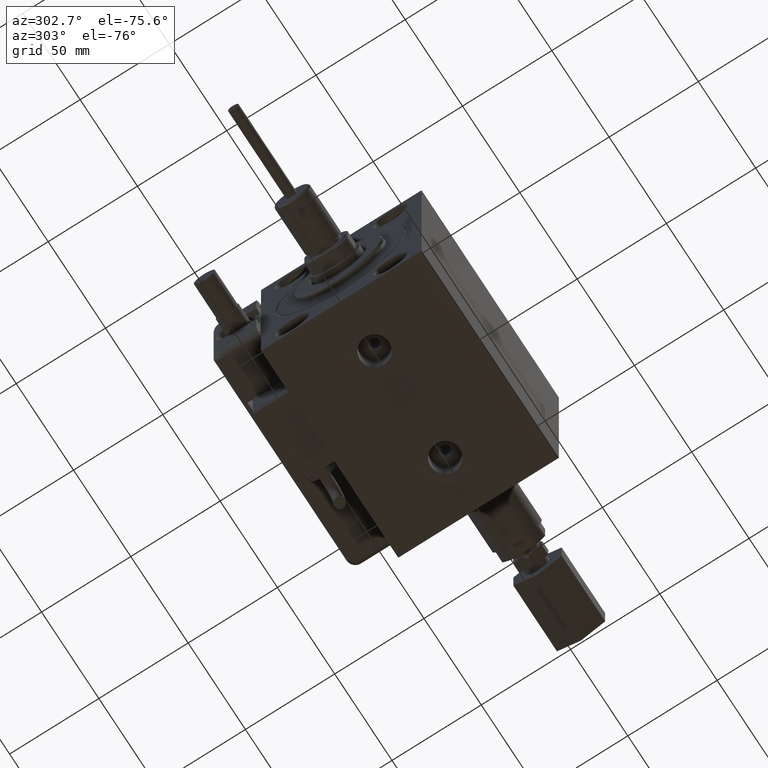
[diagram: clean part render]
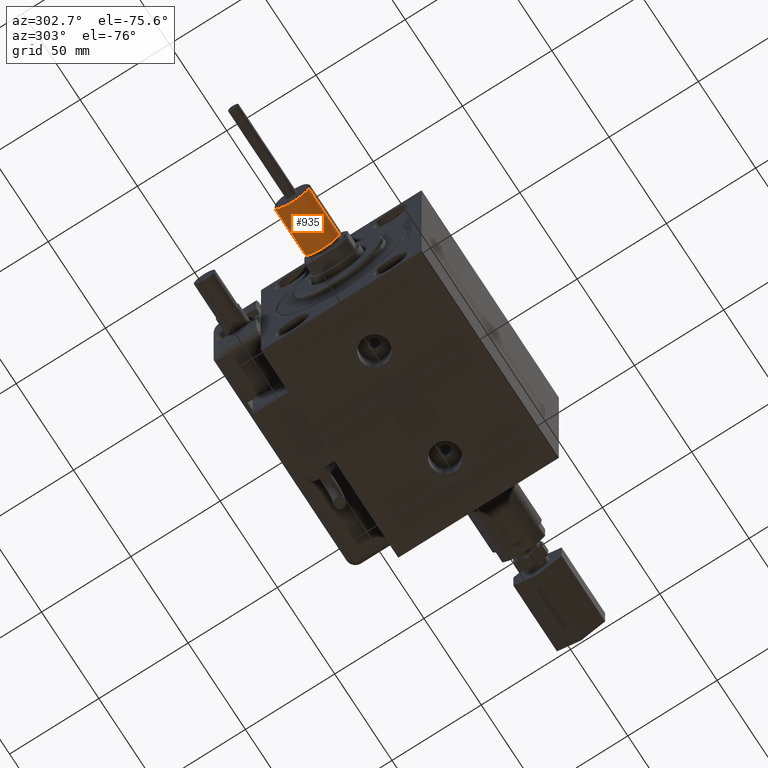
[diagram: same view with one face highlighted and labeled with its STEP entity id]
A machine part, auxiliary view. The second image highlights one B-rep face of the part: STEP entity #935.
In plain terms, the highlighted cylindrical surface (edge-blend (fillet) strip) has radius 10 mm, axis along (-1, 0, 0).
Its self-contained STEP definition (entity closure, byte-faithful):
#449 = LINE ( 'NONE', #10029, #8671 ) ;
#935 = ADVANCED_FACE ( 'NONE', ( #48809 ), #6759, .T. ) ;
#1913 = LINE ( 'NONE', #34362, #54474 ) ;
#3718 = EDGE_CURVE ( 'NONE', #16997, #10381, #449, .T. ) ;
#4275 = ORIENTED_EDGE ( 'NONE', *, *, #3718, .T. ) ;
#5372 = CARTESIAN_POINT ( 'NONE',  ( 0.000000000000000000, 0.000000000000000000, 27.50000000000000000 ) ) ;
#6156 = CARTESIAN_POINT ( 'NONE',  ( 0.000000000000000000, 0.000000000000000000, 27.50000000000000000 ) ) ;
#6206 = ORIENTED_EDGE ( 'NONE', *, *, #55293, .F. ) ;
#6213 = CIRCLE ( 'NONE', #40726, 10.00000000000000000 ) ;
#6759 = CYLINDRICAL_SURFACE ( 'NONE', #33258, 10.00000000000000000 ) ;
#6979 = CARTESIAN_POINT ( 'NONE',  ( -10.00000000000000000, 0.000000000000000000, 0.7999999999999986011 ) ) ;
#8671 = VECTOR ( 'NONE', #10949, 1000.000000000000000 ) ;
#10029 = CARTESIAN_POINT ( 'NONE',  ( 10.00000000000000000, 1.224646799147353256E-15, 27.50000000000000000 ) ) ;
#10381 = VERTEX_POINT ( 'NONE', #51995 ) ;
#10949 = DIRECTION ( 'NONE',  ( -0.000000000000000000, -0.000000000000000000, -1.000000000000000000 ) ) ;
#12207 = ORIENTED_EDGE ( 'NONE', *, *, #38555, .T. ) ;
#13743 = ORIENTED_EDGE ( 'NONE', *, *, #52657, .F. ) ;
#16997 = VERTEX_POINT ( 'NONE', #21314 ) ;
#17833 = EDGE_LOOP ( 'NONE', ( #6206, #4275, #12207, #13743 ) ) ;
#19606 = CIRCLE ( 'NONE', #42295, 10.00000000000000000 ) ;
#20472 = DIRECTION ( 'NONE',  ( -0.000000000000000000, -0.000000000000000000, -1.000000000000000000 ) ) ;
#21314 = CARTESIAN_POINT ( 'NONE',  ( 10.00000000000000000, 1.224646799147353256E-15, 27.50000000000000000 ) ) ;
#25018 = DIRECTION ( 'NONE',  ( -1.000000000000000000, 0.000000000000000000, 0.000000000000000000 ) ) ;
#25318 = DIRECTION ( 'NONE',  ( -0.000000000000000000, -0.000000000000000000, -1.000000000000000000 ) ) ;
#33258 = AXIS2_PLACEMENT_3D ( 'NONE', #6156, #25318, #25018 ) ;
#34362 = CARTESIAN_POINT ( 'NONE',  ( -10.00000000000000000, 0.000000000000000000, 27.50000000000000000 ) ) ;
#38555 = EDGE_CURVE ( 'NONE', #10381, #41544, #19606, .T. ) ;
#38729 = DIRECTION ( 'NONE',  ( 1.000000000000000000, 0.000000000000000000, 0.000000000000000000 ) ) ;
#40726 = AXIS2_PLACEMENT_3D ( 'NONE', #5372, #48626, #38729 ) ;
#41544 = VERTEX_POINT ( 'NONE', #6979 ) ;
#42295 = AXIS2_PLACEMENT_3D ( 'NONE', #51032, #56594, #51646 ) ;
#48626 = DIRECTION ( 'NONE',  ( 0.000000000000000000, 0.000000000000000000, 1.000000000000000000 ) ) ;
#48809 = FACE_OUTER_BOUND ( 'NONE', #17833, .T. ) ;
#51032 = CARTESIAN_POINT ( 'NONE',  ( 0.000000000000000000, 0.000000000000000000, 0.7999999999999986011 ) ) ;
#51646 = DIRECTION ( 'NONE',  ( 1.000000000000000000, 0.000000000000000000, 0.000000000000000000 ) ) ;
#51995 = CARTESIAN_POINT ( 'NONE',  ( 10.00000000000000000, 1.224646799147353256E-15, 0.7999999999999986011 ) ) ;
#52657 = EDGE_CURVE ( 'NONE', #60078, #41544, #1913, .T. ) ;
#54474 = VECTOR ( 'NONE', #20472, 1000.000000000000000 ) ;
#55293 = EDGE_CURVE ( 'NONE', #16997, #60078, #6213, .T. ) ;
#56594 = DIRECTION ( 'NONE',  ( -0.000000000000000000, -0.000000000000000000, 1.000000000000000000 ) ) ;
#57211 = CARTESIAN_POINT ( 'NONE',  ( -10.00000000000000000, 0.000000000000000000, 27.50000000000000000 ) ) ;
#60078 = VERTEX_POINT ( 'NONE', #57211 ) ;